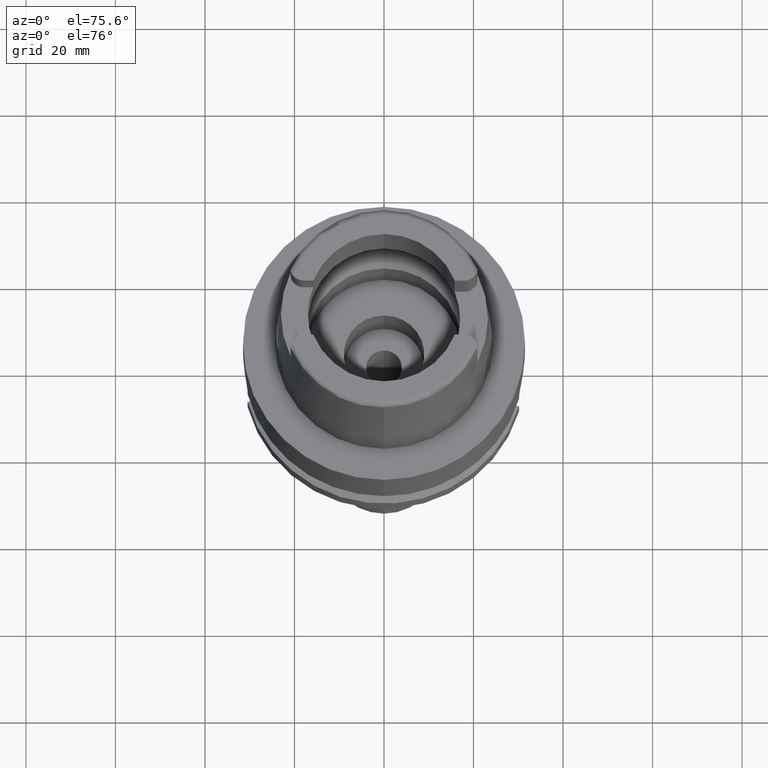
[diagram: clean part render]
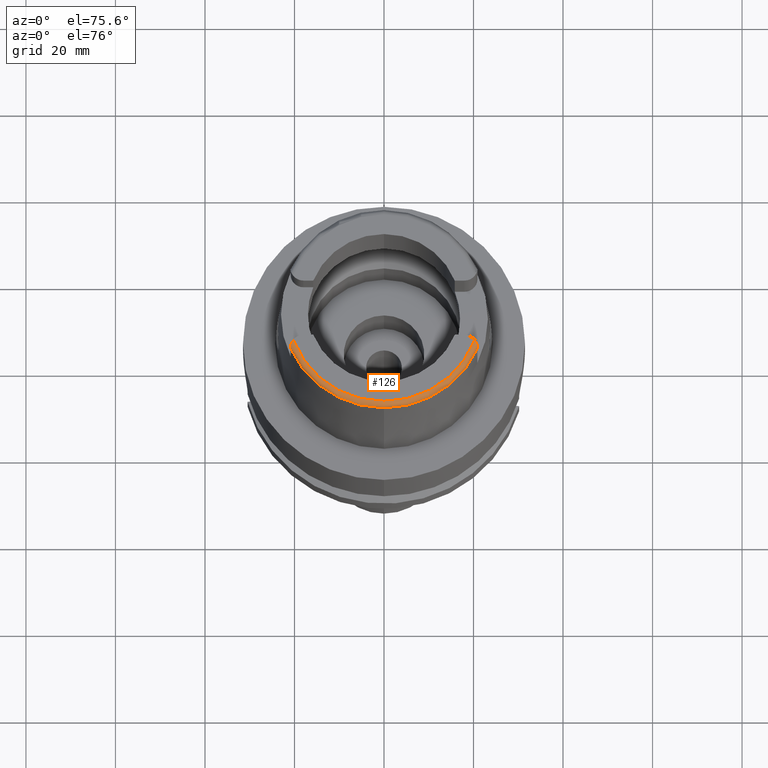
[diagram: same view with one face highlighted and labeled with its STEP entity id]
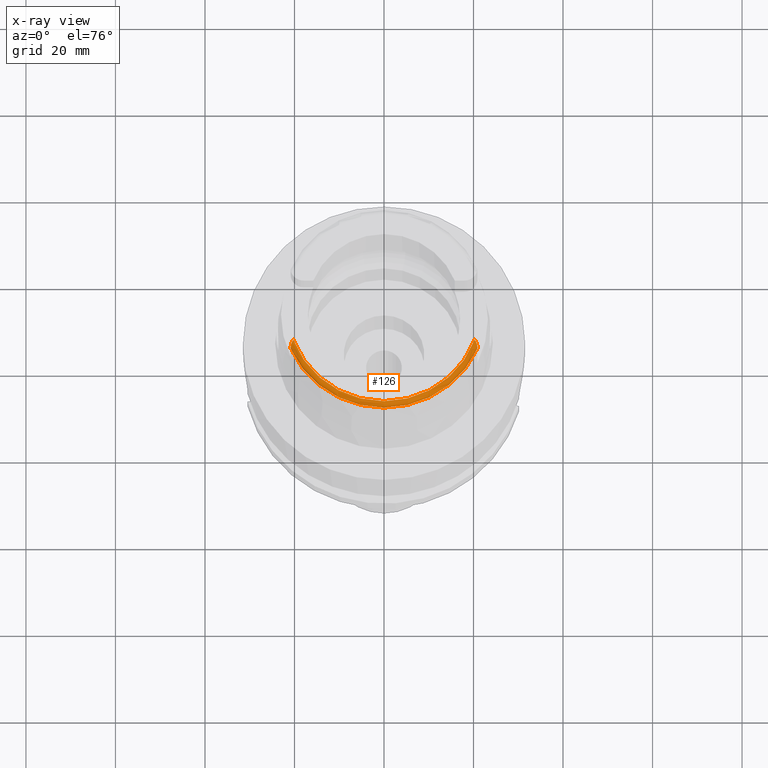
[diagram: x-ray of the same camera — body ghosted, the highlighted face saturated]
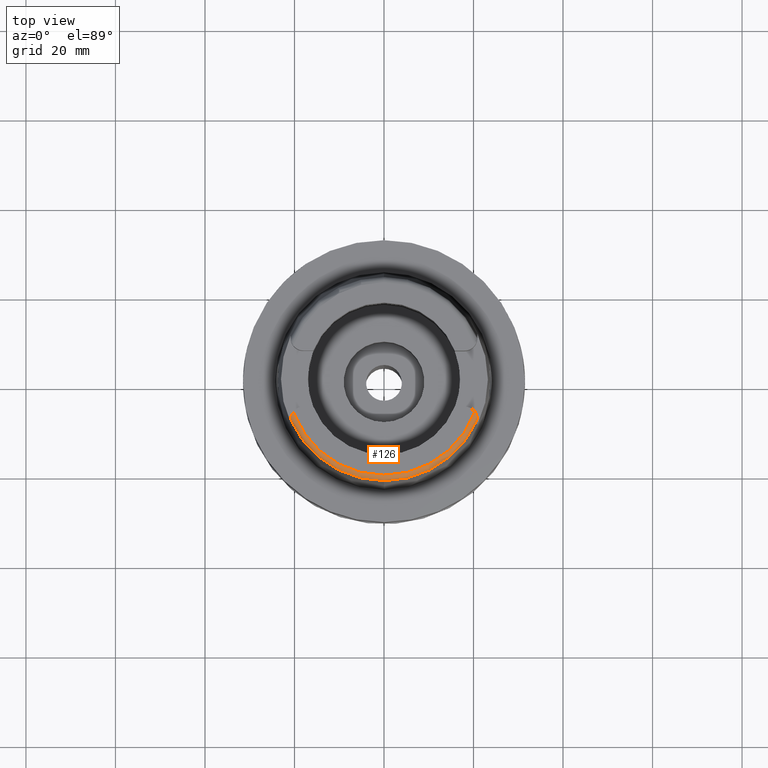
[diagram: same view with one face highlighted and labeled with its STEP entity id]
A machine part, auxiliary view. The second image highlights one B-rep face of the part: STEP entity #126.
The next image is the same camera in x-ray: the body ghosted, the highlighted face saturated — about 0% of this face is hidden behind the body in this view.
A second angle (top view) of the same face is appended — the face is thin or edge-on in the first view.
In plain terms, the highlighted toroidal blend (fillet) surface has major radius 21.5735 mm and minor (blend) radius 1.2 mm.
Its self-contained STEP definition (entity closure, byte-faithful):
#8 = CIRCLE ( 'NONE', #2491, 22.77198729362000407 ) ;
#66 = CARTESIAN_POINT ( 'NONE',  ( -20.86965323102226222, -9.104831250947427179, 30.91397202660017740 ) ) ;
#89 = CARTESIAN_POINT ( 'NONE',  ( 20.59531480144134719, -7.921794378707714301, 31.89470645965162987 ) ) ;
#100 = CARTESIAN_POINT ( 'NONE',  ( -20.82142773447197470, -8.622870591205209934, 31.51646585648126830 ) ) ;
#120 = CARTESIAN_POINT ( 'NONE',  ( 20.81368621809536634, -8.582925345831300845, 31.54559892284253309 ) ) ;
#126 = ADVANCED_FACE ( 'NONE', ( #1191 ), #5108, .T. ) ;
#132 = CARTESIAN_POINT ( 'NONE',  ( -20.78424790273546208, -8.452084473364001482, 31.63345922955470257 ) ) ;
#149 = CARTESIAN_POINT ( 'NONE',  ( 20.79479435480256555, -8.495755324354510307, 31.60536950147639601 ) ) ;
#161 = CARTESIAN_POINT ( 'NONE',  ( -20.65161133515474745, -8.049806069790793828, 31.84412520585600603 ) ) ;
#501 = EDGE_CURVE ( 'NONE', #2916, #2808, #2945, .T. ) ;
#516 = CARTESIAN_POINT ( 'NONE',  ( 20.50249677401516735, -7.740908895948086510, 31.95169328614842641 ) ) ;
#584 = CARTESIAN_POINT ( 'NONE',  ( 20.75021793764063105, -8.327966356504322931, 31.70719957620072549 ) ) ;
#593 = CARTESIAN_POINT ( 'NONE',  ( -20.86946466231572828, -9.089322957743625864, 30.96847391569258434 ) ) ;
#637 = VERTEX_POINT ( 'NONE', #3895 ) ;
#685 = CARTESIAN_POINT ( 'NONE',  ( -20.71251855112800655, -8.207773726651170776, 31.77224426000714530 ) ) ;
#818 = AXIS2_PLACEMENT_3D ( 'NONE', #1968, #5675, #5271 ) ;
#956 = AXIS2_PLACEMENT_3D ( 'NONE', #5755, #4794, #2907 ) ;
#1050 = CARTESIAN_POINT ( 'NONE',  ( 20.74574894098561018, -8.313078321037620455, 31.71551735359012980 ) ) ;
#1088 = ORIENTED_EDGE ( 'NONE', *, *, #4348, .F. ) ;
#1096 = CARTESIAN_POINT ( 'NONE',  ( -20.86838000910085711, -9.052644289052885540, 31.05091053273452317 ) ) ;
#1118 = CARTESIAN_POINT ( 'NONE',  ( 20.86948636021434567, -9.049295712638228295, 31.07795433587827461 ) ) ;
#1191 = FACE_OUTER_BOUND ( 'NONE', #5344, .T. ) ;
#1232 = EDGE_CURVE ( 'NONE', #637, #4599, #3687, .T. ) ;
#1360 = ORIENTED_EDGE ( 'NONE', *, *, #2997, .F. ) ;
#1486 = CARTESIAN_POINT ( 'NONE',  ( 20.76700950835610016, -8.385214945563470579, 31.67470487318697892 ) ) ;
#1498 = CARTESIAN_POINT ( 'NONE',  ( -20.86787699394106710, -9.038182297402888921, 31.07850336898239263 ) ) ;
#1551 = CARTESIAN_POINT ( 'NONE',  ( 20.53231078813449173, -7.795384318030646575, 31.93659743806980700 ) ) ;
#1626 = CARTESIAN_POINT ( 'NONE',  ( -20.73816517037293039, -8.286867709068818755, 31.73053229482698256 ) ) ;
#1779 = CARTESIAN_POINT ( 'NONE',  ( 0.0000000000000000000, 0.0000000000000000000, 30.85992712280000205 ) ) ;
#1968 = CARTESIAN_POINT ( 'NONE',  ( 0.0000000000000000000, 0.0000000000000000000, 32.00000000000000000 ) ) ;
#1972 = CARTESIAN_POINT ( 'NONE',  ( -20.77581248284897342, -8.418840206496982503, 31.65418234571700040 ) ) ;
#1989 = CARTESIAN_POINT ( 'NONE',  ( 20.72508543924294599, -8.247198941526184157, 31.75119290064204591 ) ) ;
#1998 = CARTESIAN_POINT ( 'NONE',  ( -20.76022700646948493, -8.362357410861841700, 31.68757512810345389 ) ) ;
#2017 = CARTESIAN_POINT ( 'NONE',  ( 20.62792577821973339, -7.994145239676557324, 31.86696783880717376 ) ) ;
#2029 = CARTESIAN_POINT ( 'NONE',  ( -20.75746215243860604, -8.352666125750284110, 31.69317839473983867 ) ) ;
#2208 = CARTESIAN_POINT ( 'NONE',  ( -20.26871835884000106, -7.388795116668999796, 32.00000000000000000 ) ) ;
#2369 = ORIENTED_EDGE ( 'NONE', *, *, #501, .F. ) ;
#2411 = CARTESIAN_POINT ( 'NONE',  ( 20.69364858791787753, -8.154936495839201882, 31.79804183787703664 ) ) ;
#2475 = CARTESIAN_POINT ( 'NONE',  ( 20.77892821661901834, -8.430063005591833303, 31.64762261935521437 ) ) ;
#2491 = AXIS2_PLACEMENT_3D ( 'NONE', #1779, #2705, #4586 ) ;
#2506 = CARTESIAN_POINT ( 'NONE',  ( 20.34093603036966158, -7.482233271137368469, 32.00000000000000711 ) ) ;
#2531 = ORIENTED_EDGE ( 'NONE', *, *, #5638, .F. ) ;
#2538 = CARTESIAN_POINT ( 'NONE',  ( 20.86079927824551916, -8.918474765114384084, 31.24787647018632342 ) ) ;
#2560 = CARTESIAN_POINT ( 'NONE',  ( 20.86974110888999689, -9.111383544770999876, 30.85992740332000039 ) ) ;
#2568 = CARTESIAN_POINT ( 'NONE',  ( 0.0000000000000000000, -22.77198729362000051, 30.85992712280000205 ) ) ;
#2705 = DIRECTION ( 'NONE',  ( 0.0000000000000000000, 0.0000000000000000000, -1.000000000000000000 ) ) ;
#2808 = VERTEX_POINT ( 'NONE', #2873 ) ;
#2873 = CARTESIAN_POINT ( 'NONE',  ( -20.86974104062000279, -9.111384045575000812, 30.85992599311000006 ) ) ;
#2907 = DIRECTION ( 'NONE',  ( 0.0000000000000000000, -1.000000000000000000, 0.0000000000000000000 ) ) ;
#2916 = VERTEX_POINT ( 'NONE', #2568 ) ;
#2917 = CARTESIAN_POINT ( 'NONE',  ( -20.83078223785593863, -8.675980769872989384, 31.47576856986595573 ) ) ;
#2939 = CARTESIAN_POINT ( 'NONE',  ( 20.57470182627418964, -7.879292159235466109, 31.90942491152829774 ) ) ;
#2945 = CIRCLE ( 'NONE', #956, 22.77198729362000051 ) ;
#2971 = CARTESIAN_POINT ( 'NONE',  ( 20.26871835884000106, -7.388795116669998997, 32.00000000000000000 ) ) ;
#2981 = CARTESIAN_POINT ( 'NONE',  ( -20.86118867711266489, -8.920581209723502880, 31.24800706825303820 ) ) ;
#2997 = EDGE_CURVE ( 'NONE', #4965, #2916, #8, .T. ) ;
#3004 = CARTESIAN_POINT ( 'NONE',  ( 20.86956532934093289, -9.098276252353274529, 30.96803361598134074 ) ) ;
#3017 = CARTESIAN_POINT ( 'NONE',  ( -20.26871835884000106, -7.388795116668999796, 32.00000000000000000 ) ) ;
#3053 = CARTESIAN_POINT ( 'NONE',  ( -20.86638583046335427, -9.004797571718052396, 31.13391696927923391 ) ) ;
#3058 = B_SPLINE_CURVE_WITH_KNOTS ( 'NONE', 3,
 ( #5827, #66, #593, #1096, #1498, #3053, #4931, #2981, #4896, #3851, #5858, #3885, #2917, #4837, #100, #4433, #4806, #132, #1972, #5370, #1998, #2029, #1626, #685, #4399, #3912, #161, #3513, #5736, #5799, #3017 ),
 .UNSPECIFIED., .F., .F.,
 ( 4, 2, 2, 2, 2, 2, 2, 2, 2, 1, 2, 2, 1, 1, 2, 2, 4 ),
 ( 0.0000000000000000000, 0.1249999999999938938, 0.1874999999999907851, 0.2499999999999876765, 0.3749999999999816813, 0.4374999999999796274, 0.4687499999999806821, 0.4999999999999817923, 0.5624999999999833467, 0.5937499999999850120, 0.6093749999999871214, 0.6249999999999892308, 0.6874999999999897859, 0.7187499999999900080, 0.7343749999999892308, 0.7499999999999884537, 1.000000000000000000 ),
 .UNSPECIFIED. ) ;
#3276 = ORIENTED_EDGE ( 'NONE', *, *, #1232, .T. ) ;
#3373 = CARTESIAN_POINT ( 'NONE',  ( 20.84231100161579775, -8.746959093616185399, 31.41972372810100111 ) ) ;
#3468 = CARTESIAN_POINT ( 'NONE',  ( 20.86267075638635049, -8.943574066158666014, 31.21762336979393027 ) ) ;
#3501 = CARTESIAN_POINT ( 'NONE',  ( 20.40888984405026818, -7.582044950207455614, 31.98792332153711016 ) ) ;
#3513 = CARTESIAN_POINT ( 'NONE',  ( -20.64680822427625273, -8.038233338229884950, 31.84900643310433566 ) ) ;
#3687 = CIRCLE ( 'NONE', #818, 21.57348458608998598 ) ;
#3851 = CARTESIAN_POINT ( 'NONE',  ( -20.84594640969915602, -8.777307417172346860, 31.39115995198864084 ) ) ;
#3869 = CARTESIAN_POINT ( 'NONE',  ( 20.79974769616283581, -8.517389789331337724, 31.59101350599492619 ) ) ;
#3885 = CARTESIAN_POINT ( 'NONE',  ( -20.83366091063586722, -8.693608490189927096, 31.46173003121798573 ) ) ;
#3895 = CARTESIAN_POINT ( 'NONE',  ( 20.26871835884000106, -7.388795116669998997, 32.00000000000000000 ) ) ;
#3904 = CARTESIAN_POINT ( 'NONE',  ( 20.63494932761248890, -8.010330580634111186, 31.86047137526132289 ) ) ;
#3912 = CARTESIAN_POINT ( 'NONE',  ( -20.66232931570992193, -8.076101675254671264, 31.83281514656632893 ) ) ;
#3917 = CARTESIAN_POINT ( 'NONE',  ( 0.0000000000000000000, 0.0000000000000000000, 30.80000000000000071 ) ) ;
#3933 = CARTESIAN_POINT ( 'NONE',  ( 20.80902617611630845, -8.560110846763853587, 31.56175826932161499 ) ) ;
#4348 = EDGE_CURVE ( 'NONE', #2808, #4599, #3058, .T. ) ;
#4399 = CARTESIAN_POINT ( 'NONE',  ( -20.67807546519602369, -8.115567922418483349, 31.81546096826622616 ) ) ;
#4433 = CARTESIAN_POINT ( 'NONE',  ( -20.80934147594881978, -8.560502452415118313, 31.56195589310245708 ) ) ;
#4586 = DIRECTION ( 'NONE',  ( 0.9164655183265837390, -0.4001136759951928745, 0.0000000000000000000 ) ) ;
#4599 = VERTEX_POINT ( 'NONE', #2208 ) ;
#4794 = DIRECTION ( 'NONE',  ( 0.0000000000000000000, 0.0000000000000000000, -1.000000000000000000 ) ) ;
#4806 = CARTESIAN_POINT ( 'NONE',  ( -20.80011045836328876, -8.517774637615739053, 31.59120423637081032 ) ) ;
#4837 = CARTESIAN_POINT ( 'NONE',  ( -20.82449951550846023, -8.639754519833553914, 31.50376178360870227 ) ) ;
#4854 = CARTESIAN_POINT ( 'NONE',  ( 20.61500724526164774, -7.965099328769539078, 31.87828972486613566 ) ) ;
#4886 = CARTESIAN_POINT ( 'NONE',  ( 20.86974110888999689, -9.111383544770999876, 30.85992740332000039 ) ) ;
#4896 = CARTESIAN_POINT ( 'NONE',  ( -20.85682186194383192, -8.868129396080576043, 31.30567076680267036 ) ) ;
#4931 = CARTESIAN_POINT ( 'NONE',  ( -20.86545780194071398, -8.986807538512950444, 31.16050515779011576 ) ) ;
#4965 = VERTEX_POINT ( 'NONE', #2560 ) ;
#5108 = TOROIDAL_SURFACE ( 'NONE', #5506, 21.57348458609000019, 1.199999999999999956 ) ;
#5263 = CARTESIAN_POINT ( 'NONE',  ( 20.66283803514838979, -8.075946865805851971, 31.83351379118109392 ) ) ;
#5271 = DIRECTION ( 'NONE',  ( 0.9395199128801114963, -0.3424942821446042007, 0.0000000000000000000 ) ) ;
#5344 = EDGE_LOOP ( 'NONE', ( #2369, #1360, #2531, #3276, #1088 ) ) ;
#5370 = CARTESIAN_POINT ( 'NONE',  ( -20.76657185767479064, -8.385024683558075509, 31.67429889123479825 ) ) ;
#5404 = DIRECTION ( 'NONE',  ( 0.0000000000000000000, 0.0000000000000000000, 1.000000000000000000 ) ) ;
#5506 = AXIS2_PLACEMENT_3D ( 'NONE', #3917, #5404, #5804 ) ;
#5638 = EDGE_CURVE ( 'NONE', #637, #4965, #5805, .T. ) ;
#5675 = DIRECTION ( 'NONE',  ( 0.0000000000000000000, 0.0000000000000000000, -1.000000000000000000 ) ) ;
#5724 = CARTESIAN_POINT ( 'NONE',  ( 20.73760898424688293, -8.286730058355830764, 31.72994371503128619 ) ) ;
#5736 = CARTESIAN_POINT ( 'NONE',  ( -20.54061730942922281, -7.788367029255361729, 31.95168205859338073 ) ) ;
#5755 = CARTESIAN_POINT ( 'NONE',  ( 0.0000000000000000000, 0.0000000000000000000, 30.85992712280000205 ) ) ;
#5787 = CARTESIAN_POINT ( 'NONE',  ( 20.85319050117841400, -8.837797886776868950, 31.33422407783302432 ) ) ;
#5799 = CARTESIAN_POINT ( 'NONE',  ( -20.41318802418595979, -7.575715833177906866, 32.00000000000000711 ) ) ;
#5804 = DIRECTION ( 'NONE',  ( -0.0006539142454762719193, -0.9999997861980568503, 0.0000000000000000000 ) ) ;
#5805 = B_SPLINE_CURVE_WITH_KNOTS ( 'NONE', 3,
 ( #2971, #2506, #3501, #516, #1551, #2939, #89, #4854, #2017, #3904, #5263, #2411, #1989, #5724, #1050, #584, #1486, #2475, #149, #3869, #3933, #120, #5845, #3373, #5787, #5819, #2538, #3468, #1118, #3004, #4886 ),
 .UNSPECIFIED., .F., .F.,
 ( 4, 2, 2, 1, 2, 2, 1, 1, 2, 2, 2, 2, 2, 2, 2, 2, 4 ),
 ( 0.0000000000000000000, 0.1249999999999792111, 0.1874999999999696632, 0.2187499999999645561, 0.2343749999999633626, 0.2499999999999621414, 0.3124999999999582556, 0.3437499999999579781, 0.3593749999999594213, 0.3749999999999608646, 0.4374999999999689693, 0.4687499999999704681, 0.4999999999999719114, 0.6249999999999836797, 0.6874999999999866773, 0.7499999999999896749, 1.000000000000000000 ),
 .UNSPECIFIED. ) ;
#5819 = CARTESIAN_POINT ( 'NONE',  ( 20.85608953957055789, -8.866057784878544012, 31.30555460293460968 ) ) ;
#5827 = CARTESIAN_POINT ( 'NONE',  ( -20.86974104062000279, -9.111384045575000812, 30.85992599311000006 ) ) ;
#5845 = CARTESIAN_POINT ( 'NONE',  ( 20.83217161535898043, -8.678300036629179814, 31.47604512904333163 ) ) ;
#5858 = CARTESIAN_POINT ( 'NONE',  ( -20.84159379287622471, -8.745012123576287877, 31.41948861994422160 ) ) ;